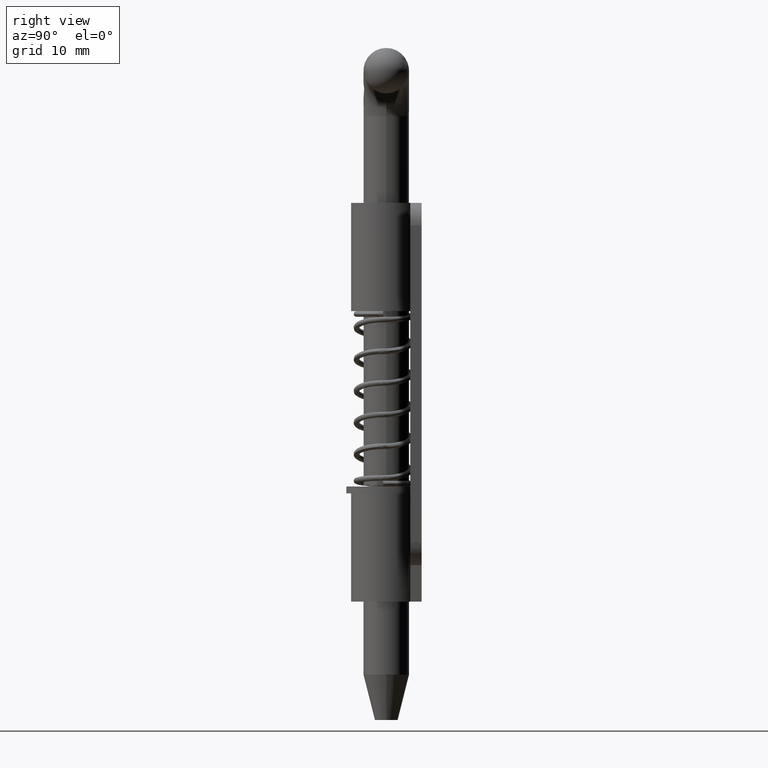
[diagram: clean part render]
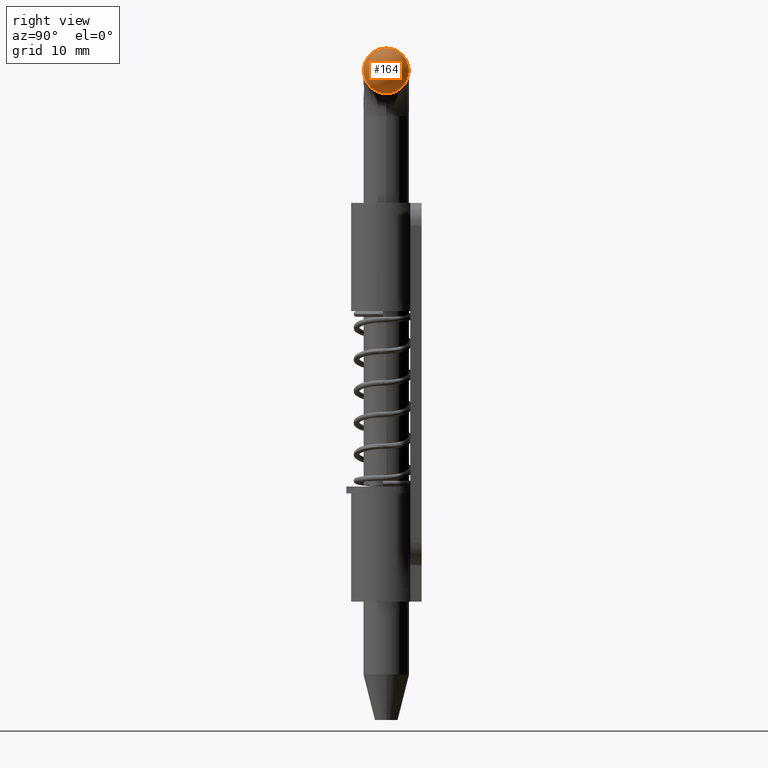
[diagram: same view with one face highlighted and labeled with its STEP entity id]
A machine part, right view. The second image highlights one B-rep face of the part: STEP entity #164.
In plain terms, the highlighted spherical surface has radius 2 mm.
Its self-contained STEP definition (entity closure, byte-faithful):
#164=ADVANCED_FACE('',(#387),#386,.T.);
#386=SPHERICAL_SURFACE('',#1189,2.00000000000E+00);
#387=FACE_OUTER_BOUND('',#1190,.T.);
#1186=CARTESIAN_POINT('',(1.90000000000E+01,8.67292349049E-11,3.71000000001E+01));
#1187=DIRECTION('',(0.00000000000E+00,0.00000000000E+00,1.00000000000E+00));
#1188=DIRECTION('',(-9.99961923064E-01,8.72653549837E-03,0.00000000000E+00));
#1189=AXIS2_PLACEMENT_3D('',#1186,#1187,#1188);
#1190=EDGE_LOOP('',(#3174,#3175));
#3174=ORIENTED_EDGE('',*,*,#3594,.T.);
#3175=ORIENTED_EDGE('',*,*,#3595,.T.);
#3594=EDGE_CURVE('',#4166,#4167,#4168,.T.);
#3595=EDGE_CURVE('',#4167,#4166,#4174,.T.);
#4166=VERTEX_POINT('',#5464);
#4167=VERTEX_POINT('',#5465);
#4168=CIRCLE('',#5469,2.00000000000E+00);
#4174=CIRCLE('',#5473,2.00000000000E+00);
#5464=CARTESIAN_POINT('',(1.90000000000E+01,8.67287450623E-11,3.51000000001E+01));
#5465=CARTESIAN_POINT('',(1.90000000000E+01,8.67292349049E-11,3.91000000001E+01));
#5466=CARTESIAN_POINT('',(1.90000000000E+01,8.67292349049E-11,3.71000000001E+01));
#5467=DIRECTION('',(1.00000000000E+00,0.00000000000E+00,-0.00000000000E+00));
#5468=DIRECTION('',(-0.00000000000E+00,-1.22460650000E-16,-1.00000000000E+00));
#5469=AXIS2_PLACEMENT_3D('',#5466,#5467,#5468);
#5470=CARTESIAN_POINT('',(1.90000000000E+01,8.67292349049E-11,3.71000000001E+01));
#5471=DIRECTION('',(1.00000000000E+00,0.00000000000E+00,-0.00000000000E+00));
#5472=DIRECTION('',(-0.00000000000E+00,-1.22460650000E-16,-1.00000000000E+00));
#5473=AXIS2_PLACEMENT_3D('',#5470,#5471,#5472);